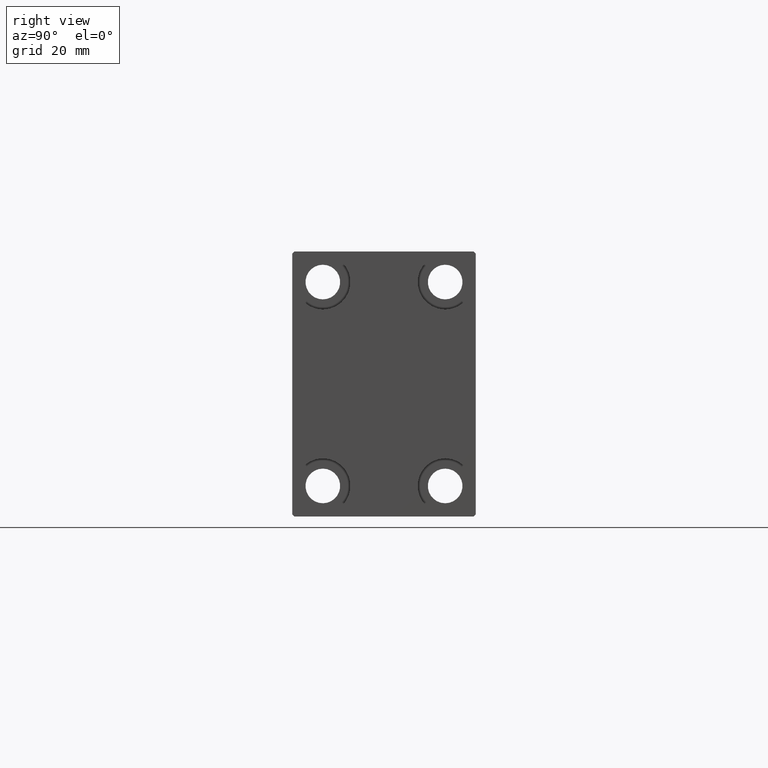
[diagram: clean part render]
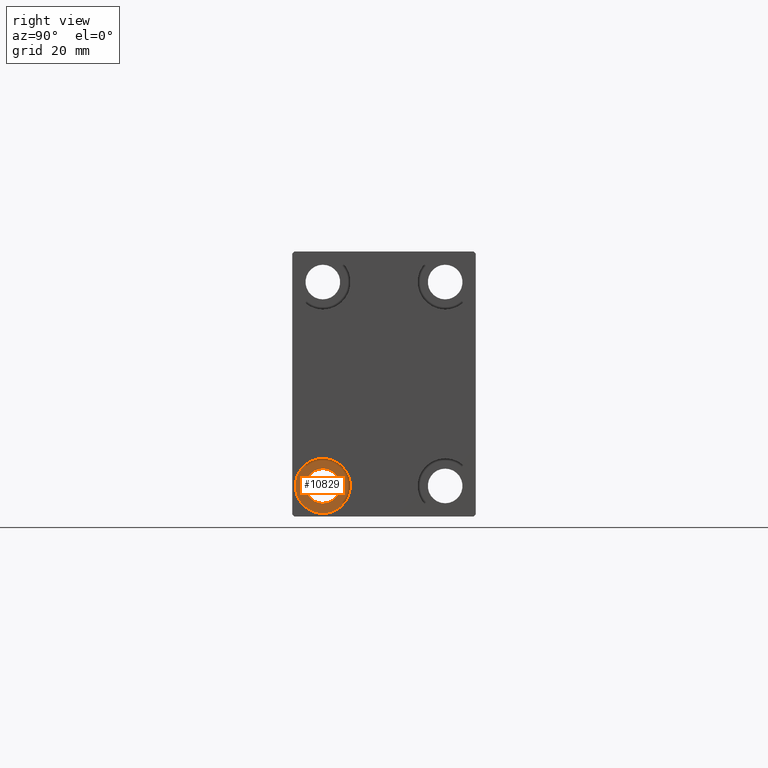
[diagram: same view with one face highlighted and labeled with its STEP entity id]
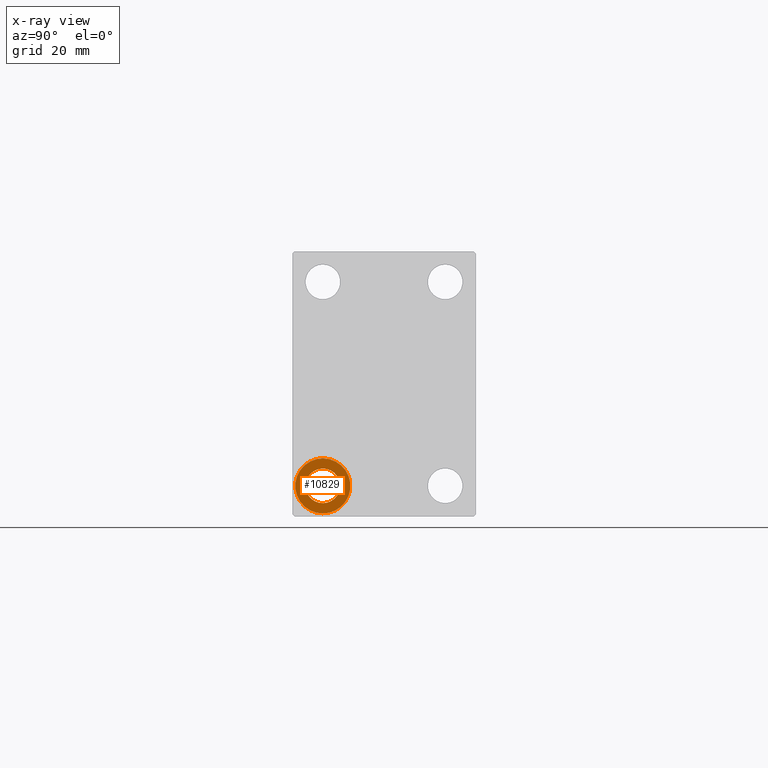
[diagram: x-ray of the same camera — body ghosted, the highlighted face saturated]
A machine part, right view. The second image highlights one B-rep face of the part: STEP entity #10829.
The next image is the same camera in x-ray: the body ghosted, the highlighted face saturated — about 0% of this face is hidden behind the body in this view.
In plain terms, the highlighted planar face has unit normal (1, 0, 0).
Its self-contained STEP definition (entity closure, byte-faithful):
#687 = VERTEX_POINT ( 'NONE', #24612 ) ;
#2966 = FACE_OUTER_BOUND ( 'NONE', #27329, .T. ) ;
#3347 = DIRECTION ( 'NONE',  ( -1.000000000000000000, -0.000000000000000000, -0.000000000000000000 ) ) ;
#4749 = ORIENTED_EDGE ( 'NONE', *, *, #39025, .F. ) ;
#5000 = DIRECTION ( 'NONE',  ( 0.000000000000000000, 0.000000000000000000, 1.000000000000000000 ) ) ;
#6308 = DIRECTION ( 'NONE',  ( 0.000000000000000000, 0.000000000000000000, 1.000000000000000000 ) ) ;
#8297 = CARTESIAN_POINT ( 'NONE',  ( 141.0000000000000000, -15.00000000000000355, -20.75000000000000355 ) ) ;
#9898 = DIRECTION ( 'NONE',  ( -1.000000000000000000, -0.000000000000000000, -0.000000000000000000 ) ) ;
#10411 = CARTESIAN_POINT ( 'NONE',  ( 141.0000000000000000, -15.00000000000000355, -25.00000000000000000 ) ) ;
#10829 = ADVANCED_FACE ( 'NONE', ( #2966, #15876 ), #16525, .T. ) ;
#12769 = DIRECTION ( 'NONE',  ( 1.000000000000000000, 0.000000000000000000, -0.000000000000000000 ) ) ;
#13122 = EDGE_LOOP ( 'NONE', ( #42025, #18860 ) ) ;
#14936 = AXIS2_PLACEMENT_3D ( 'NONE', #40376, #9898, #33481 ) ;
#15876 = FACE_BOUND ( 'NONE', #13122, .T. ) ;
#16525 = PLANE ( 'NONE',  #40871 ) ;
#16923 = AXIS2_PLACEMENT_3D ( 'NONE', #10411, #23974, #17295 ) ;
#17295 = DIRECTION ( 'NONE',  ( 0.000000000000000000, 0.000000000000000000, 1.000000000000000000 ) ) ;
#17680 = DIRECTION ( 'NONE',  ( -1.000000000000000000, -0.000000000000000000, -0.000000000000000000 ) ) ;
#17932 = VERTEX_POINT ( 'NONE', #19302 ) ;
#18860 = ORIENTED_EDGE ( 'NONE', *, *, #41436, .T. ) ;
#19302 = CARTESIAN_POINT ( 'NONE',  ( 141.0000000000000000, -15.00000000000000355, -31.75000000000000000 ) ) ;
#19883 = EDGE_CURVE ( 'NONE', #43974, #687, #33805, .T. ) ;
#23974 = DIRECTION ( 'NONE',  ( -1.000000000000000000, -0.000000000000000000, -0.000000000000000000 ) ) ;
#24612 = CARTESIAN_POINT ( 'NONE',  ( 141.0000000000000000, -15.00000000000000355, -29.25000000000000000 ) ) ;
#25517 = CARTESIAN_POINT ( 'NONE',  ( 141.0000000000000000, -15.00000000000000355, -18.25000000000000355 ) ) ;
#26536 = CARTESIAN_POINT ( 'NONE',  ( 141.0000000000000000, 0.000000000000000000, 0.000000000000000000 ) ) ;
#26947 = AXIS2_PLACEMENT_3D ( 'NONE', #41500, #17680, #5000 ) ;
#27329 = EDGE_LOOP ( 'NONE', ( #33089, #4749 ) ) ;
#30690 = DIRECTION ( 'NONE',  ( 0.000000000000000000, 0.000000000000000000, -1.000000000000000000 ) ) ;
#31727 = EDGE_CURVE ( 'NONE', #17932, #35869, #36120, .T. ) ;
#33089 = ORIENTED_EDGE ( 'NONE', *, *, #31727, .F. ) ;
#33355 = CIRCLE ( 'NONE', #26947, 6.749999999999999112 ) ;
#33481 = DIRECTION ( 'NONE',  ( 0.000000000000000000, 0.000000000000000000, -1.000000000000000000 ) ) ;
#33805 = CIRCLE ( 'NONE', #36627, 4.249999999999996447 ) ;
#34103 = CIRCLE ( 'NONE', #14936, 4.249999999999996447 ) ;
#34715 = CARTESIAN_POINT ( 'NONE',  ( 141.0000000000000000, -15.00000000000000355, -25.00000000000000000 ) ) ;
#35869 = VERTEX_POINT ( 'NONE', #25517 ) ;
#36120 = CIRCLE ( 'NONE', #16923, 6.749999999999999112 ) ;
#36627 = AXIS2_PLACEMENT_3D ( 'NONE', #34715, #3347, #30690 ) ;
#39025 = EDGE_CURVE ( 'NONE', #35869, #17932, #33355, .T. ) ;
#40376 = CARTESIAN_POINT ( 'NONE',  ( 141.0000000000000000, -15.00000000000000355, -25.00000000000000000 ) ) ;
#40871 = AXIS2_PLACEMENT_3D ( 'NONE', #26536, #12769, #6308 ) ;
#41436 = EDGE_CURVE ( 'NONE', #687, #43974, #34103, .T. ) ;
#41500 = CARTESIAN_POINT ( 'NONE',  ( 141.0000000000000000, -15.00000000000000355, -25.00000000000000000 ) ) ;
#42025 = ORIENTED_EDGE ( 'NONE', *, *, #19883, .T. ) ;
#43974 = VERTEX_POINT ( 'NONE', #8297 ) ;